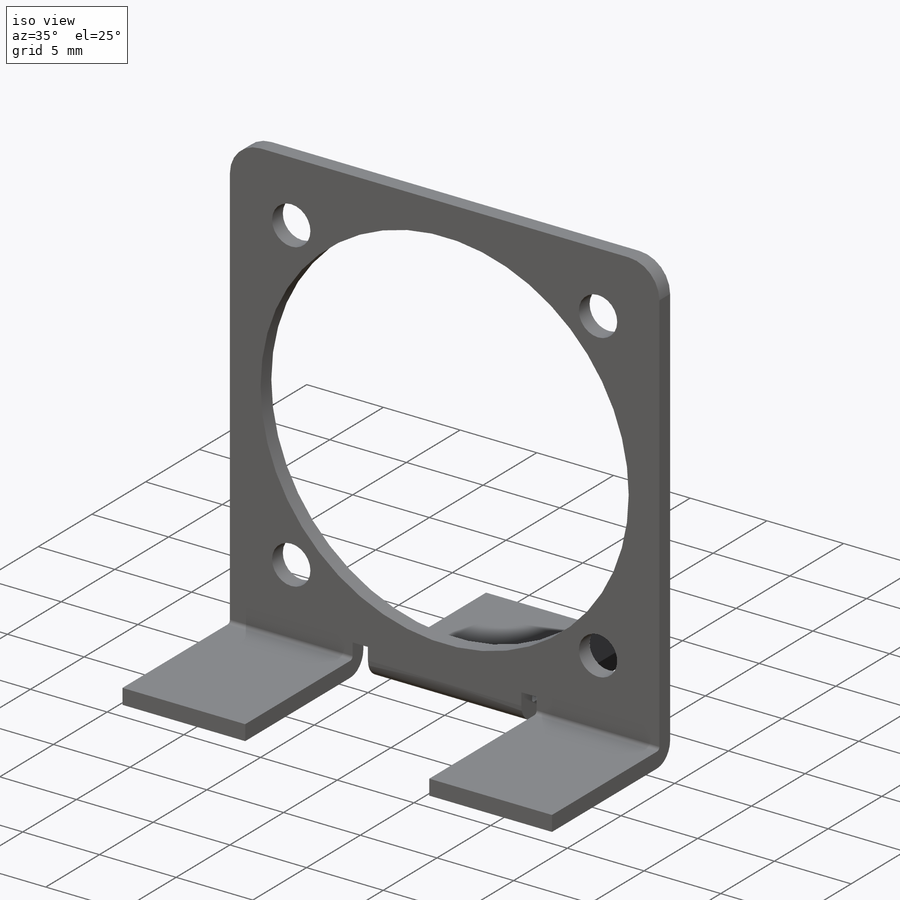
[diagram: iso view]
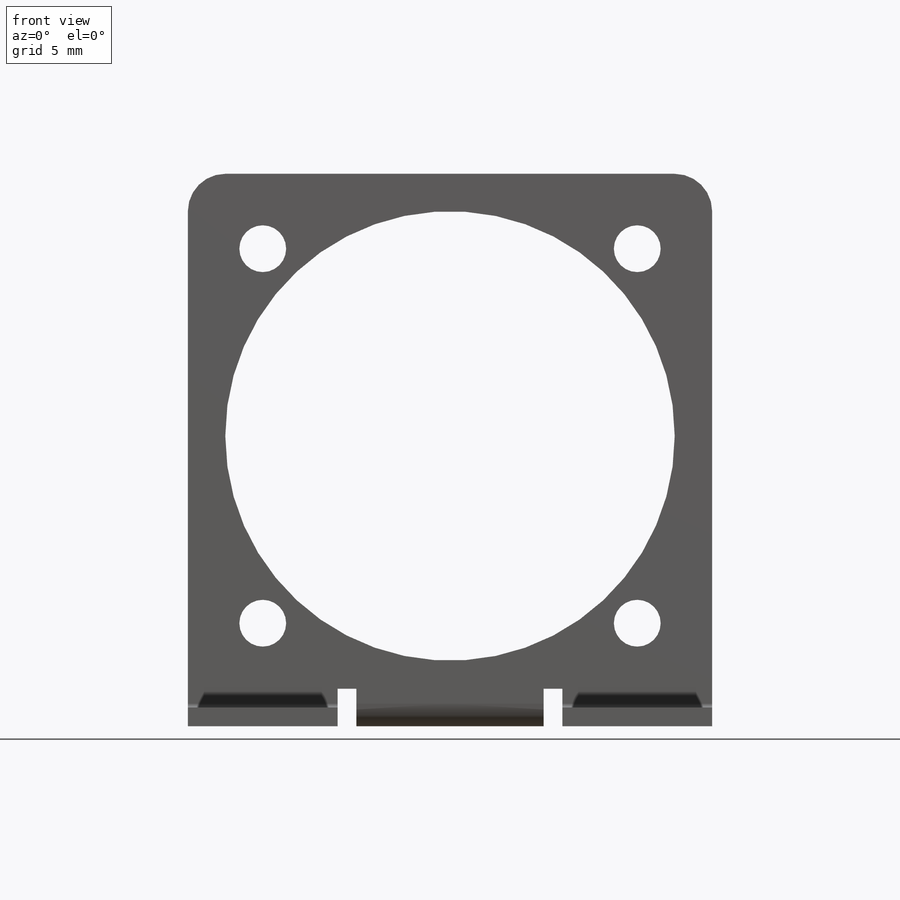
[diagram: front view]
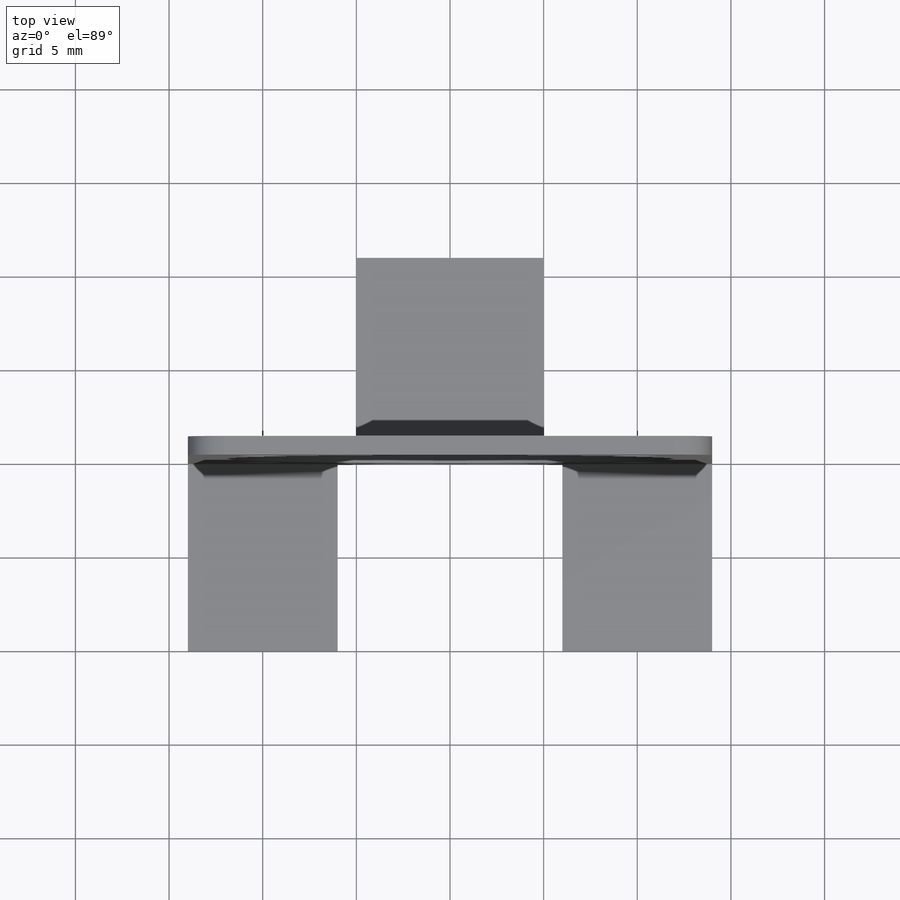
[diagram: top view]
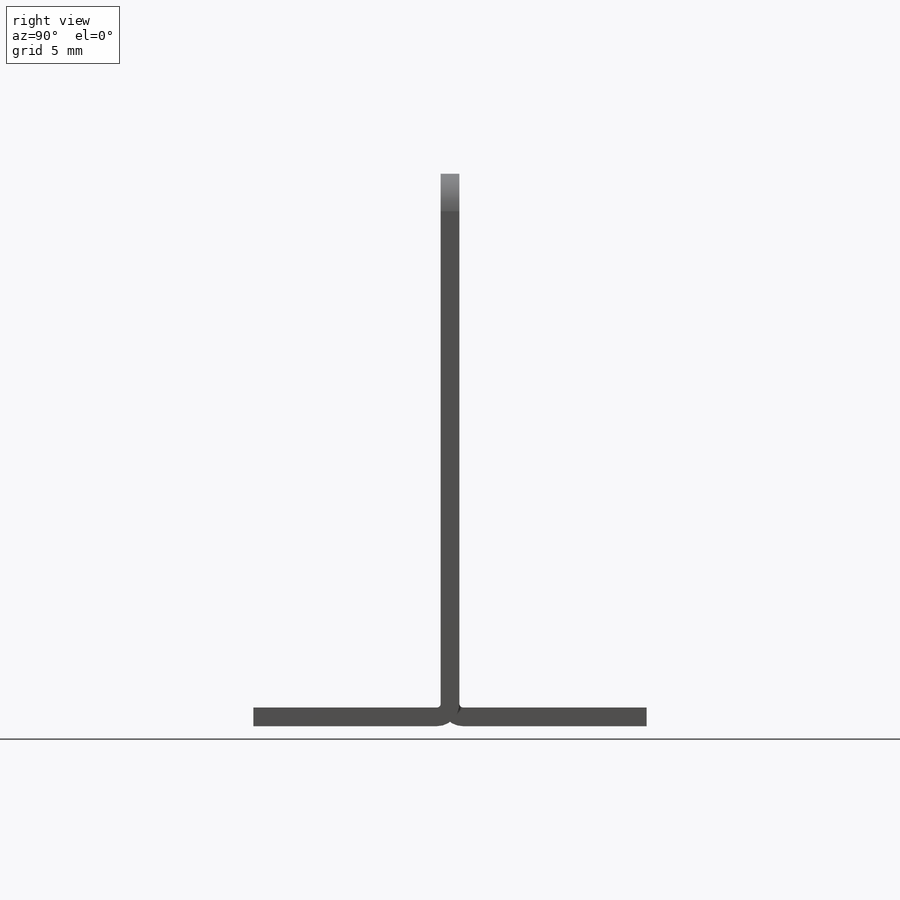
[diagram: right view]
SOLIDWORKS PART (.sldprt)
format: sldprt  version: not decoded by parser v0  size: 322,560 bytes
history: native  units: mm
features: sketch x15, sheet_metal_op x6, plane x3, fillet x3, material x1, cut_extrude x1 + 8 further entries (+9 scaffold rows collapsed; 1 parser-record rows omitted)
feature tree (47):
  scaffold x9  (default folders/planes/origin — collapsed)
  material  "2014-T6"
  plane  "Ebene vorne"
  plane  "Ebene oben"
  plane  "Ebene rechts"
  sketch  "Skizze1"  dims[c1.D3=2.5mm c1.D2=24.0mm c1.D1=28.0mm c2.D2=30.0mm c2.D4=20.0mm c2.D5=15.5mm c2.D1=0.2mm c3.D2=0.5 c3.D3=0.0mm c3.D6=500.0mm]
  sheet_metal_op  "Basis-Blech1"
  fillet  "Verrundung1"  Radius=2mm
  sketch  "Skizze9"  dims[D1=1.0mm D2=10.0mm D3=2.0mm]
  cut_extrude  "Schnitt-Linear austragen1"  [1 undecoded]
  sketch  "Skizze14"
  sketch  "Skizze15"  dims[D1=0.2mm D4=90.0deg D5=1.0 D8=0.5mm D9=0.5mm]
  fillet  "Kantenbiegung3"  Radius=0.2mm
  sheet_metal_op  "Kante-Lasche3"
  sketch  "Skizze18"
  fillet  "Kantenbiegung4"  Radius=0.2mm
  sketch  "Biegung-Linien1"
  sketch  "Rahmen1"
  sheet_metal_op  "Blech1"
  "Abwicklung1"
  sketch  "Biegung-Linien2"
  sketch  "Rahmen2"
  parser-record x1  (decoder bookkeeping rows leaked as tree rows — omitted from the tree; the rows remain in map.json)
  sheet_metal_op  "Blech3"
  "Abwicklung1"
  sketch  "Biegung-Linien2"
  sketch  "Rahmen2"
  sheet_metal_op  "Blech4"
  "Abwicklung1"
  sketch  "Biegung-Linien2"
  sketch  "Rahmen2"
  "Abwickeln-<Kantenbiegung3>1"
  sheet_metal_op  "Blech5"
  "Abwicklung1"
  sketch  "Biegung-Linien2"
  sketch  "Rahmen2"
  "Abwickeln-<Kantenbiegung2>1"
  "Abwickeln-<Kantenbiegung3>1"
  "Abwickeln-<Kantenbiegung4>1"
decode coverage: 6 of 25 modeling features carry decoded parameters; 8 rows unclassified (native names shown)
note: 1 parameter value undecoded
note: suppression state not decoded; provenance and decode notes live in map.json
